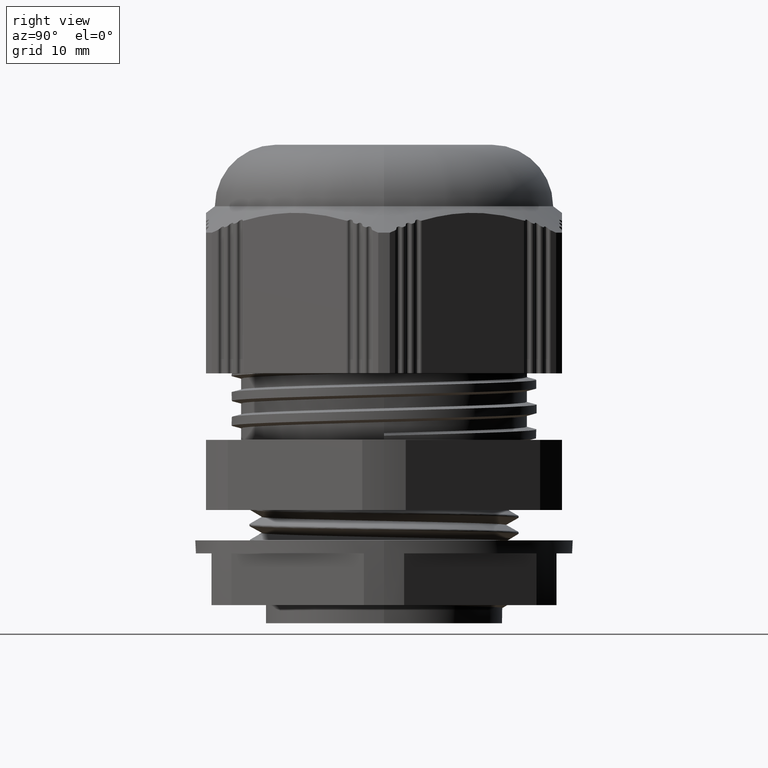
[diagram: clean part render]
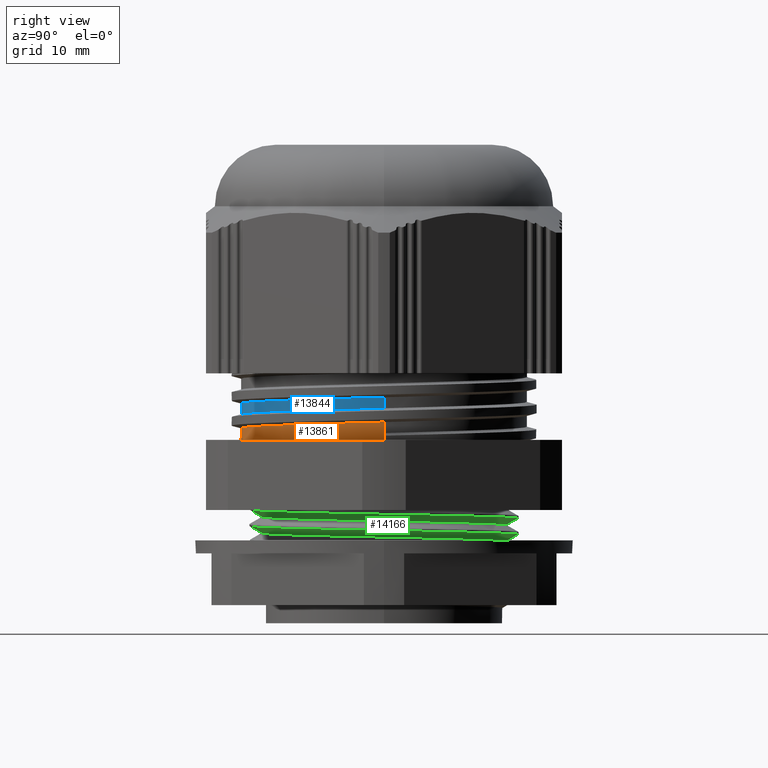
[diagram: same view with three faces highlighted in distinct colors, each labeled with its STEP entity id]
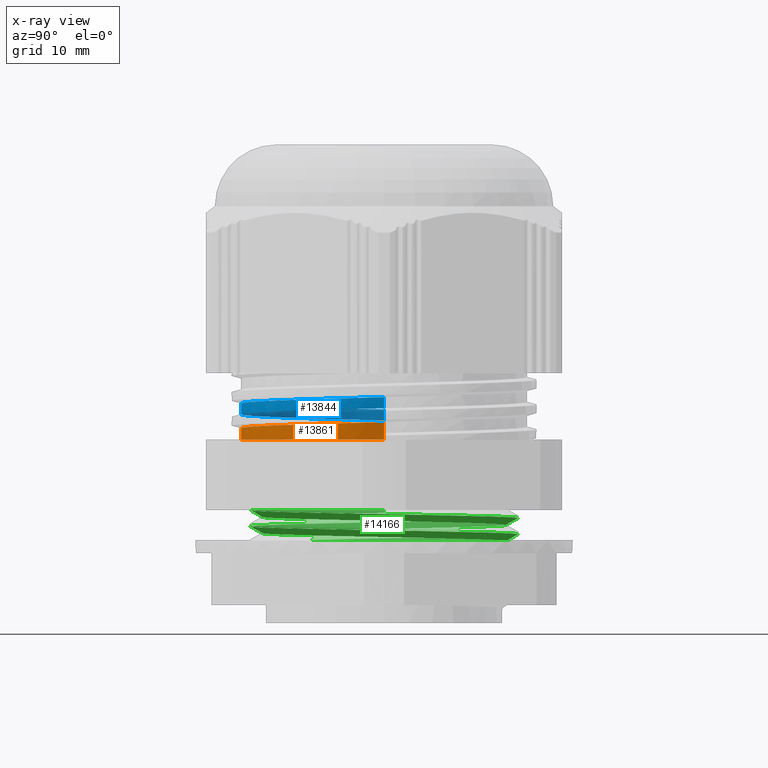
[diagram: x-ray of the same camera — body ghosted, the three highlighted faces saturated]
A machine part, right view with three faces highlighted in distinct colors.
The next image is the same camera in x-ray (body ghosted, the three faces saturated) — at least one of them is partly hidden behind the body in this view.
Their STEP definitions:

[orange] entity #13861 — the highlighted cylindrical surface (partial cylindrical patch) has radius 13.25 mm, axis along (-0, -0, -1).
#1371 = VERTEX_POINT ( 'NONE', #8330 ) ;
#1380 = VERTEX_POINT ( 'NONE', #8355 ) ;
#1400 = VERTEX_POINT ( 'NONE', #8377 ) ;
#1401 = VERTEX_POINT ( 'NONE', #8362 ) ;
#1424 = VERTEX_POINT ( 'NONE', #8402 ) ;
#1917 = LINE ( 'NONE', #1983, #12895 ) ;
#1983 = CARTESIAN_POINT ( 'NONE',  ( 13.25000000000000200, -2.412808294941499400E-015, 16.47990381056724400 ) ) ;
#1984 = DIRECTION ( 'NONE',  ( 0.0000000000000000000, 0.0000000000000000000, 1.000000000000000000 ) ) ;
#2043 = LINE ( 'NONE', #2046, #12894 ) ;
#2046 = CARTESIAN_POINT ( 'NONE',  ( 13.25000000000000200, 1.622657008870243300E-015, 37.00000000000000700 ) ) ;
#2047 = DIRECTION ( 'NONE',  ( -0.0000000000000000000, -0.0000000000000000000, -1.000000000000000000 ) ) ;
#2069 = DIRECTION ( 'NONE',  ( -1.000000000000000000, 0.0000000000000000000, 0.0000000000000000000 ) ) ;
#2083 = DIRECTION ( 'NONE',  ( -0.0000000000000000000, -0.0000000000000000000, -1.000000000000000000 ) ) ;
#2086 = CARTESIAN_POINT ( 'NONE',  ( 0.0000000000000000000, 0.0000000000000000000, 17.00000000000001800 ) ) ;
#2126 = CARTESIAN_POINT ( 'NONE',  ( -13.24999999999999800, 4.035465303811741300E-015, 17.50932667397281900 ) ) ;
#2149 = CARTESIAN_POINT ( 'NONE',  ( -13.25000000000000500, -4.305185975086005500, 17.62432667397281300 ) ) ;
#2154 = CARTESIAN_POINT ( 'NONE',  ( 8.188950350936103500, -11.27112321066452900, 18.31432667397282200 ) ) ;
#2156 = CARTESIAN_POINT ( 'NONE',  ( 4.094475175468048200, -12.60149884091078600, 18.19932667397282000 ) ) ;
#2158 = CARTESIAN_POINT ( 'NONE',  ( 13.25000000000000500, 3.612496407899203900E-013, 18.65932667397282800 ) ) ;
#2160 = CARTESIAN_POINT ( 'NONE',  ( -5.096220598043507100E-015, -13.93187447115703600, 18.08432667397282100 ) ) ;
#2174 = CARTESIAN_POINT ( 'NONE',  ( 13.25000000000028100, -4.305185975085628900, 18.54432667397282200 ) ) ;
#2177 = CARTESIAN_POINT ( 'NONE',  ( -10.71947517546805400, -7.788154592875266700, 17.73932667397282300 ) ) ;
#2187 = CARTESIAN_POINT ( 'NONE',  ( -8.188950350936110600, -11.27112321066452200, 17.85432667397281700 ) ) ;
#2189 = CARTESIAN_POINT ( 'NONE',  ( 10.71947517546805000, -7.788154592875275600, 18.42932667397282700 ) ) ;
#2190 = CARTESIAN_POINT ( 'NONE',  ( -4.094475175468058800, -12.60149884091078400, 17.96932667397281900 ) ) ;
#2261 = LINE ( 'NONE', #2265, #12955 ) ;
#2265 = CARTESIAN_POINT ( 'NONE',  ( -13.25000000000000200, 0.0000000000000000000, 37.00000000000000700 ) ) ;
#2271 = DIRECTION ( 'NONE',  ( -0.0000000000000000000, -0.0000000000000000000, -1.000000000000000000 ) ) ;
#2641 = EDGE_CURVE ( 'NONE', #1371, #1400, #1917, .T. ) ;
#2650 = EDGE_CURVE ( 'NONE', #1424, #1400, #2043, .T. ) ;
#2659 = EDGE_CURVE ( 'NONE', #1371, #1401, #12919, .T. ) ;
#2668 = EDGE_CURVE ( 'NONE', #1380, #1424, #4157, .T. ) ;
#2688 = EDGE_CURVE ( 'NONE', #1380, #1401, #2261, .T. ) ;
#3116 = AXIS2_PLACEMENT_3D ( 'NONE', #6259, #6225, #6239 ) ;
#3998 = ORIENTED_EDGE ( 'NONE', *, *, #2688, .T. ) ;
#4012 = ORIENTED_EDGE ( 'NONE', *, *, #2641, .T. ) ;
#4030 = ORIENTED_EDGE ( 'NONE', *, *, #2668, .F. ) ;
#4034 = ORIENTED_EDGE ( 'NONE', *, *, #2659, .F. ) ;
#4061 = ORIENTED_EDGE ( 'NONE', *, *, #2650, .F. ) ;
#4157 =( BOUNDED_CURVE ( )  B_SPLINE_CURVE ( 2, ( #2126, #2149, #2177, #2187, #2190, #2160, #2156, #2154, #2189, #2174, #2158 ),
 .UNSPECIFIED., .F., .T. ) 
 B_SPLINE_CURVE_WITH_KNOTS ( ( 3, 2, 2, 2, 2, 3 ),
 ( -0.1676083694263614300, -0.1592279325895034300, -0.1508474957526454400, -0.1424670589157874800, -0.1340866220789294900, -0.1257061852420715000 ),
 .UNSPECIFIED. ) 
 CURVE ( )  GEOMETRIC_REPRESENTATION_ITEM ( )  RATIONAL_B_SPLINE_CURVE ( ( 1.000000000000000000, 0.9510565162951535300, 1.000000000000000000, 0.9510565162951535300, 1.000000000000000000, 0.9510565162951535300, 1.000000000000000000, 0.9510565162951535300, 1.000000000000000000, 0.9510565162951484200, 1.000000000000005100 ) ) 
 REPRESENTATION_ITEM ( '' )  );
#6225 = DIRECTION ( 'NONE',  ( -0.0000000000000000000, -0.0000000000000000000, -1.000000000000000000 ) ) ;
#6230 = FACE_OUTER_BOUND ( 'NONE', #11141, .T. ) ;
#6239 = DIRECTION ( 'NONE',  ( -1.000000000000000000, 0.0000000000000000000, 0.0000000000000000000 ) ) ;
#6248 = CYLINDRICAL_SURFACE ( 'NONE', #3116, 13.25000000000000200 ) ;
#6259 = CARTESIAN_POINT ( 'NONE',  ( 0.0000000000000000000, 0.0000000000000000000, 37.00000000000000700 ) ) ;
#8330 = CARTESIAN_POINT ( 'NONE',  ( 13.25000000000000200, -2.494752727599954300E-015, 17.00000000000000000 ) ) ;
#8355 = CARTESIAN_POINT ( 'NONE',  ( -13.24999999999999800, 4.035465303811741300E-015, 17.50932667397281900 ) ) ;
#8362 = CARTESIAN_POINT ( 'NONE',  ( -13.25000000000000200, 0.0000000000000000000, 17.00000000000001800 ) ) ;
#8377 = CARTESIAN_POINT ( 'NONE',  ( 13.25000000000000200, -2.412808294941499400E-015, 17.64067332602712000 ) ) ;
#8402 = CARTESIAN_POINT ( 'NONE',  ( 13.25000000000000500, 3.612496407899203900E-013, 18.65932667397282800 ) ) ;
#11141 = EDGE_LOOP ( 'NONE', ( #4061, #4030, #3998, #4034, #4012 ) ) ;
#12894 = VECTOR ( 'NONE', #2047, 1000.000000000000000 ) ;
#12895 = VECTOR ( 'NONE', #1984, 1000.000000000000000 ) ;
#12919 = CIRCLE ( 'NONE', #12920, 13.25000000000000200 ) ;
#12920 = AXIS2_PLACEMENT_3D ( 'NONE', #2086, #2083, #2069 ) ;
#12955 = VECTOR ( 'NONE', #2271, 1000.000000000000000 ) ;
#13861 = ADVANCED_FACE ( 'NONE', ( #6230 ), #6248, .T. ) ;

[blue] entity #13844 — the highlighted cylindrical surface (partial cylindrical patch) has radius 13.25 mm, axis along (-0, -0, -1).
#1370 = VERTEX_POINT ( 'NONE', #8350 ) ;
#1391 = VERTEX_POINT ( 'NONE', #8385 ) ;
#1393 = VERTEX_POINT ( 'NONE', #8356 ) ;
#1417 = VERTEX_POINT ( 'NONE', #8393 ) ;
#1924 = CARTESIAN_POINT ( 'NONE',  ( -4.094475175468058800, -12.60149884091078800, 19.25067332602711500 ) ) ;
#1932 = CARTESIAN_POINT ( 'NONE',  ( 10.71947517546805200, -7.788154592875276400, 19.71067332602711300 ) ) ;
#1938 = CARTESIAN_POINT ( 'NONE',  ( 13.25000000000028400, -4.305185975085628900, 19.82567332602712500 ) ) ;
#1944 = CARTESIAN_POINT ( 'NONE',  ( -13.25000000000000200, 4.035465303811742900E-015, 18.79067332602711100 ) ) ;
#1950 = CARTESIAN_POINT ( 'NONE',  ( -10.71947517546805500, -7.788154592875267600, 19.02067332602711500 ) ) ;
#1969 = CARTESIAN_POINT ( 'NONE',  ( 4.094475175468048200, -12.60149884091078900, 19.48067332602712300 ) ) ;
#1971 = CARTESIAN_POINT ( 'NONE',  ( -8.188950350936110600, -11.27112321066452500, 19.13567332602711000 ) ) ;
#1973 = CARTESIAN_POINT ( 'NONE',  ( -13.25000000000000700, -4.305185975086005500, 18.90567332602711300 ) ) ;
#1985 = CARTESIAN_POINT ( 'NONE',  ( 8.188950350936103500, -11.27112321066453000, 19.59567332602711400 ) ) ;
#1990 = CARTESIAN_POINT ( 'NONE',  ( -5.096220598043507100E-015, -13.93187447115703600, 19.36567332602711400 ) ) ;
#1992 = CARTESIAN_POINT ( 'NONE',  ( 13.25000000000000200, 3.612496407899202900E-013, 19.94067332602712700 ) ) ;
#2021 = LINE ( 'NONE', #2032, #12908 ) ;
#2032 = CARTESIAN_POINT ( 'NONE',  ( 13.25000000000000200, 1.622657008870243300E-015, 37.00000000000000700 ) ) ;
#2038 = DIRECTION ( 'NONE',  ( -0.0000000000000000000, -0.0000000000000000000, -1.000000000000000000 ) ) ;
#2065 = CARTESIAN_POINT ( 'NONE',  ( -13.25000000000000200, 0.0000000000000000000, 37.00000000000000700 ) ) ;
#2081 = LINE ( 'NONE', #2065, #12921 ) ;
#2091 = DIRECTION ( 'NONE',  ( -0.0000000000000000000, -0.0000000000000000000, -1.000000000000000000 ) ) ;
#2644 = EDGE_CURVE ( 'NONE', #1391, #1417, #4156, .T. ) ;
#2647 = EDGE_CURVE ( 'NONE', #1393, #1391, #2021, .T. ) ;
#2660 = EDGE_CURVE ( 'NONE', #1370, #1417, #2081, .T. ) ;
#2715 = EDGE_CURVE ( 'NONE', #1370, #1393, #4160, .T. ) ;
#3107 = AXIS2_PLACEMENT_3D ( 'NONE', #6135, #6152, #6136 ) ;
#3996 = ORIENTED_EDGE ( 'NONE', *, *, #2644, .F. ) ;
#4001 = ORIENTED_EDGE ( 'NONE', *, *, #2647, .F. ) ;
#4016 = ORIENTED_EDGE ( 'NONE', *, *, #2715, .F. ) ;
#4033 = ORIENTED_EDGE ( 'NONE', *, *, #2660, .T. ) ;
#4156 =( BOUNDED_CURVE ( )  B_SPLINE_CURVE ( 2, ( #1992, #1938, #1932, #1985, #1969, #1990, #1924, #1971, #1950, #1973, #1944 ),
 .UNSPECIFIED., .F., .T. ) 
 B_SPLINE_CURVE_WITH_KNOTS ( ( 3, 2, 2, 2, 2, 3 ),
 ( -0.04190200052898114500, -0.03352160042318490900, -0.02514120031738868400, -0.01676080021159245800, -0.008380400105796222100, 0.0000000000000000000 ),
 .UNSPECIFIED. ) 
 CURVE ( )  GEOMETRIC_REPRESENTATION_ITEM ( )  RATIONAL_B_SPLINE_CURVE ( ( 1.000000000000005100, 0.9510565162951484200, 1.000000000000000000, 0.9510565162951535300, 1.000000000000000000, 0.9510565162951535300, 1.000000000000000000, 0.9510565162951535300, 1.000000000000000000, 0.9510565162951535300, 1.000000000000000000 ) ) 
 REPRESENTATION_ITEM ( '' )  );
#4160 =( BOUNDED_CURVE ( )  B_SPLINE_CURVE ( 2, ( #14579, #14583, #14658, #14621, #14664, #14610, #14639, #14642, #14646, #14614, #14616 ),
 .UNSPECIFIED., .F., .T. ) 
 B_SPLINE_CURVE_WITH_KNOTS ( ( 3, 2, 2, 2, 2, 3 ),
 ( -0.08380406227630851600, -0.07542364992684295900, -0.06704323757737741500, -0.05866282522791188600, -0.05028241287844632800, -0.04190200052898077800 ),
 .UNSPECIFIED. ) 
 CURVE ( )  GEOMETRIC_REPRESENTATION_ITEM ( )  RATIONAL_B_SPLINE_CURVE ( ( 1.000000000000004400, 0.9510565162951492000, 1.000000000000000000, 0.9510565162951535300, 1.000000000000000000, 0.9510565162951535300, 1.000000000000000000, 0.9510565162951535300, 1.000000000000000000, 0.9510565162951535300, 1.000000000000000000 ) ) 
 REPRESENTATION_ITEM ( '' )  );
#6129 = FACE_OUTER_BOUND ( 'NONE', #11189, .T. ) ;
#6133 = CYLINDRICAL_SURFACE ( 'NONE', #3107, 13.25000000000000200 ) ;
#6135 = CARTESIAN_POINT ( 'NONE',  ( 0.0000000000000000000, 0.0000000000000000000, 37.00000000000000700 ) ) ;
#6136 = DIRECTION ( 'NONE',  ( -1.000000000000000000, 0.0000000000000000000, 0.0000000000000000000 ) ) ;
#6152 = DIRECTION ( 'NONE',  ( -0.0000000000000000000, -0.0000000000000000000, -1.000000000000000000 ) ) ;
#8350 = CARTESIAN_POINT ( 'NONE',  ( -13.25000000000000200, 2.313244959818492500E-013, 19.80932667397282300 ) ) ;
#8356 = CARTESIAN_POINT ( 'NONE',  ( 13.25000000000000200, -2.412808294941499400E-015, 20.95932667397282500 ) ) ;
#8385 = CARTESIAN_POINT ( 'NONE',  ( 13.25000000000000200, 3.612496407899202900E-013, 19.94067332602712700 ) ) ;
#8393 = CARTESIAN_POINT ( 'NONE',  ( -13.25000000000000200, 4.035465303811742900E-015, 18.79067332602711100 ) ) ;
#11189 = EDGE_LOOP ( 'NONE', ( #4001, #4016, #4033, #3996 ) ) ;
#12908 = VECTOR ( 'NONE', #2038, 1000.000000000000000 ) ;
#12921 = VECTOR ( 'NONE', #2091, 1000.000000000000000 ) ;
#13844 = ADVANCED_FACE ( 'NONE', ( #6129 ), #6133, .T. ) ;
#14579 = CARTESIAN_POINT ( 'NONE',  ( -13.25000000000000200, 2.313244959818492500E-013, 19.80932667397282300 ) ) ;
#14583 = CARTESIAN_POINT ( 'NONE',  ( -13.25000000000024200, -4.305185975085679600, 19.92432667397279600 ) ) ;
#14610 = CARTESIAN_POINT ( 'NONE',  ( -5.096220598043507100E-015, -13.93187447115703700, 20.38432667397281900 ) ) ;
#14614 = CARTESIAN_POINT ( 'NONE',  ( 13.25000000000000200, -4.305185975086015300, 20.84432667397280900 ) ) ;
#14616 = CARTESIAN_POINT ( 'NONE',  ( 13.25000000000000200, -2.412808294941499400E-015, 20.95932667397282500 ) ) ;
#14621 = CARTESIAN_POINT ( 'NONE',  ( -8.188950350936110600, -11.27112321066452900, 20.15432667397282200 ) ) ;
#14639 = CARTESIAN_POINT ( 'NONE',  ( 4.094475175468048200, -12.60149884091078800, 20.49932667397282400 ) ) ;
#14642 = CARTESIAN_POINT ( 'NONE',  ( 8.188950350936103500, -11.27112321066453200, 20.61432667397281900 ) ) ;
#14646 = CARTESIAN_POINT ( 'NONE',  ( 10.71947517546805400, -7.788154592875276400, 20.72932667397281700 ) ) ;
#14658 = CARTESIAN_POINT ( 'NONE',  ( -10.71947517546805700, -7.788154592875267600, 20.03932667397282000 ) ) ;
#14664 = CARTESIAN_POINT ( 'NONE',  ( -4.094475175468058800, -12.60149884091078600, 20.26932667397282000 ) ) ;

[green] entity #14166 — the highlighted face is a freeform B-spline surface patch.
#1028 = FACE_OUTER_BOUND ( 'NONE', #11183, .T. ) ;
#1057 = CARTESIAN_POINT ( 'NONE',  ( -5.146423329586087700, -12.42456500000001900, 4.580092194645235500 ) ) ;
#1058 = CARTESIAN_POINT ( 'NONE',  ( 5.146423329586084200, 12.42456500000001900, 3.830092194645237300 ) ) ;
#1059 = CARTESIAN_POINT ( 'NONE',  ( 5.146423329586086800, -12.42456500000001900, 4.392592194645236400 ) ) ;
#1060 = CARTESIAN_POINT ( 'NONE',  ( 12.42456500000002300, -5.146423329586082400, 4.205092194645236400 ) ) ;
#1061 = CARTESIAN_POINT ( 'NONE',  ( 12.42456500000002300, 5.146423329586082400, 7.017592194645230200 ) ) ;
#1062 = CARTESIAN_POINT ( 'NONE',  ( 5.146423329586084200, 12.42456500000001900, 5.330092194645233800 ) ) ;
#1063 = CARTESIAN_POINT ( 'NONE',  ( -5.146423329586082400, 12.42456500000002300, 2.142592194645240900 ) ) ;
#1064 = CARTESIAN_POINT ( 'NONE',  ( 8.785494164793052000, 8.785494164793050200, 5.423842194645233800 ) ) ;
#1065 = CARTESIAN_POINT ( 'NONE',  ( 1.501712434213803300E-015, 12.42456500000002100, 6.736342194645232000 ) ) ;
#1066 = CARTESIAN_POINT ( 'NONE',  ( 8.785494164793052000, 8.785494164793050200, 3.923842194645237800 ) ) ;
#1067 = CARTESIAN_POINT ( 'NONE',  ( 5.146423329586086800, -12.42456500000001900, 2.892592194645240400 ) ) ;
#1068 = CARTESIAN_POINT ( 'NONE',  ( 8.785494164793052000, -8.785494164793052000, 7.298842194645230200 ) ) ;
#1069 = CARTESIAN_POINT ( 'NONE',  ( -12.42456500000001900, 5.146423329586085100, 1.955092194645241100 ) ) ;
#1070 = CARTESIAN_POINT ( 'NONE',  ( -8.785494164793052000, -8.785494164793052000, 4.673842194645234600 ) ) ;
#1071 = CARTESIAN_POINT ( 'NONE',  ( -12.42456500000001900, -5.146423329586087700, 4.767592194645235500 ) ) ;
#1072 = CARTESIAN_POINT ( 'NONE',  ( -8.785494164793050200, 8.785494164793052000, 5.048842194645235500 ) ) ;
#1073 = CARTESIAN_POINT ( 'NONE',  ( 12.42456500000002300, -5.146423329586082400, 2.705092194645239500 ) ) ;
#1074 = CARTESIAN_POINT ( 'NONE',  ( -5.146423329586087700, -12.42456500000001900, 3.080092194645238200 ) ) ;
#1076 = CARTESIAN_POINT ( 'NONE',  ( -12.42456500000001900, 5.146423329586085100, 4.955092194645234600 ) ) ;
#1077 = CARTESIAN_POINT ( 'NONE',  ( 12.42456500000002300, 5.146423329586082400, 5.517592194645233800 ) ) ;
#1078 = CARTESIAN_POINT ( 'NONE',  ( -12.42456500000001900, 5.146423329586085100, 6.455092194645232000 ) ) ;
#1079 = CARTESIAN_POINT ( 'NONE',  ( -8.785494164793052000, -8.785494164793052000, 3.173842194645238600 ) ) ;
#1080 = CARTESIAN_POINT ( 'NONE',  ( 1.501712434213803300E-015, 12.42456500000002100, 5.236342194645233800 ) ) ;
#1081 = CARTESIAN_POINT ( 'NONE',  ( -12.42456500000002100, 2.262497622116216400E-015, 1.861342194645241500 ) ) ;
#1082 = CARTESIAN_POINT ( 'NONE',  ( 12.42456500000002100, -7.409272463113904300E-016, 2.611342194645240000 ) ) ;
#1083 = CARTESIAN_POINT ( 'NONE',  ( 1.985794159102245700E-017, -12.42456500000002100, 4.486342194645236400 ) ) ;
#1084 = CARTESIAN_POINT ( 'NONE',  ( 12.42456500000002300, 5.146423329586082400, 2.517592194645239500 ) ) ;
#1085 = CARTESIAN_POINT ( 'NONE',  ( -8.785494164793050200, 8.785494164793052000, 6.548842194645231100 ) ) ;
#1086 = CARTESIAN_POINT ( 'NONE',  ( 8.785494164793052000, 8.785494164793050200, 6.923842194645230200 ) ) ;
#1087 = CARTESIAN_POINT ( 'NONE',  ( -5.146423329586082400, 12.42456500000002300, 6.642592194645232000 ) ) ;
#1088 = CARTESIAN_POINT ( 'NONE',  ( -8.785494164793052000, -8.785494164793052000, 6.173842194645232900 ) ) ;
#1089 = CARTESIAN_POINT ( 'NONE',  ( 5.146423329586086800, -12.42456500000001900, 5.892592194645233800 ) ) ;
#1090 = CARTESIAN_POINT ( 'NONE',  ( -12.42456500000001900, 5.146423329586085100, 3.455092194645238600 ) ) ;
#1091 = CARTESIAN_POINT ( 'NONE',  ( -12.42456500000002100, 2.262497622116216400E-015, 6.361342194645231100 ) ) ;
#1092 = CARTESIAN_POINT ( 'NONE',  ( 12.42456500000002100, -7.409272463113904300E-016, 7.111342194645230200 ) ) ;
#1093 = CARTESIAN_POINT ( 'NONE',  ( 1.501712434213803300E-015, 12.42456500000002100, 3.736342194645238600 ) ) ;
#1094 = CARTESIAN_POINT ( 'NONE',  ( 8.785494164793052000, 8.785494164793050200, 2.423842194645240400 ) ) ;
#1095 = CARTESIAN_POINT ( 'NONE',  ( 12.42456500000002100, -7.409272463113904300E-016, 4.111342194645236400 ) ) ;
#1096 = CARTESIAN_POINT ( 'NONE',  ( 1.985794159102245700E-017, -12.42456500000002100, 2.986342194645239100 ) ) ;
#1097 = CARTESIAN_POINT ( 'NONE',  ( -12.42456500000002100, 2.262497622116216400E-015, 4.861342194645235500 ) ) ;
#1098 = CARTESIAN_POINT ( 'NONE',  ( 12.42456500000002100, -7.409272463113904300E-016, 5.611342194645233800 ) ) ;
#1099 = CARTESIAN_POINT ( 'NONE',  ( 12.42456500000002300, -5.146423329586082400, 7.205092194645230200 ) ) ;
#1100 = CARTESIAN_POINT ( 'NONE',  ( 8.785494164793052000, -8.785494164793052000, 2.798842194645240000 ) ) ;
#1101 = CARTESIAN_POINT ( 'NONE',  ( -12.42456500000002100, 2.262497622116216400E-015, 3.361342194645238200 ) ) ;
#1102 = CARTESIAN_POINT ( 'NONE',  ( 1.985794159102245700E-017, -12.42456500000002100, 7.486342194645228400 ) ) ;
#1103 = CARTESIAN_POINT ( 'NONE',  ( -8.785494164793050200, 8.785494164793052000, 3.548842194645237800 ) ) ;
#1104 = CARTESIAN_POINT ( 'NONE',  ( -5.146423329586082400, 12.42456500000002300, 5.142592194645233800 ) ) ;
#1105 = CARTESIAN_POINT ( 'NONE',  ( -8.785494164793050200, 8.785494164793052000, 2.048842194645241300 ) ) ;
#1106 = CARTESIAN_POINT ( 'NONE',  ( -5.146423329586082400, 12.42456500000002300, 3.642592194645239100 ) ) ;
#1107 = CARTESIAN_POINT ( 'NONE',  ( 12.42456500000002300, 5.146423329586082400, 4.017592194645235500 ) ) ;
#1108 = CARTESIAN_POINT ( 'NONE',  ( 1.985794159102245700E-017, -12.42456500000002100, 5.986342194645232900 ) ) ;
#1109 = CARTESIAN_POINT ( 'NONE',  ( -12.42456500000001900, -5.146423329586087700, 3.267592194645238600 ) ) ;
#1110 = CARTESIAN_POINT ( 'NONE',  ( -5.146423329586087700, -12.42456500000001900, 6.080092194645233800 ) ) ;
#1111 = CARTESIAN_POINT ( 'NONE',  ( 5.146423329586084200, 12.42456500000001900, 6.830092194645231100 ) ) ;
#1112 = CARTESIAN_POINT ( 'NONE',  ( 8.785494164793052000, -8.785494164793052000, 4.298842194645236400 ) ) ;
#1113 = CARTESIAN_POINT ( 'NONE',  ( 8.785494164793052000, -8.785494164793052000, 5.798842194645233800 ) ) ;
#1114 = CARTESIAN_POINT ( 'NONE',  ( 5.146423329586084200, 12.42456500000001900, 2.330092194645240900 ) ) ;
#1115 = CARTESIAN_POINT ( 'NONE',  ( -12.42456500000001900, -5.146423329586087700, 6.267592194645233800 ) ) ;
#1116 = CARTESIAN_POINT ( 'NONE',  ( 1.501712434213803300E-015, 12.42456500000002100, 2.236342194645240400 ) ) ;
#1117 = CARTESIAN_POINT ( 'NONE',  ( 12.42456500000002300, -5.146423329586082400, 5.705092194645236400 ) ) ;
#1118 = CARTESIAN_POINT ( 'NONE',  ( 5.146423329586086800, -12.42456500000001900, 7.392592194645230200 ) ) ;
#1119 = CARTESIAN_POINT ( 'NONE',  ( 12.42456500000002300, 5.146423329586082400, 10.01759219464522300 ) ) ;
#1120 = CARTESIAN_POINT ( 'NONE',  ( 4.702082728408200300, 11.35183189432336100, 3.210749447314198000 ) ) ;
#1121 = CARTESIAN_POINT ( 'NONE',  ( 8.026957311365785900, 8.026957311365784200, 3.304499447314197500 ) ) ;
#1122 = CARTESIAN_POINT ( 'NONE',  ( 11.35183189432336100, 4.702082728408199400, 3.398249447314198000 ) ) ;
#1123 = CARTESIAN_POINT ( 'NONE',  ( 8.785494164793052000, -8.785494164793052000, 10.29884219464522300 ) ) ;
#1124 = CARTESIAN_POINT ( 'NONE',  ( 5.146423329586084200, 12.42456500000001900, 8.330092194645224900 ) ) ;
#1125 = CARTESIAN_POINT ( 'NONE',  ( 8.785494164793052000, -8.785494164793052000, 8.798842194645226700 ) ) ;
#1126 = CARTESIAN_POINT ( 'NONE',  ( -12.42456500000001900, 5.146423329586085100, 9.455092194645224900 ) ) ;
#1127 = CARTESIAN_POINT ( 'NONE',  ( 11.35183189432336100, -6.769558166463622000E-016, 3.491999447314198000 ) ) ;
#1128 = CARTESIAN_POINT ( 'NONE',  ( 1.985794159102245700E-017, -12.42456500000002100, 10.48634219464522300 ) ) ;
#1129 = CARTESIAN_POINT ( 'NONE',  ( -12.42456500000002100, 2.262497622116216400E-015, 7.861342194645229300 ) ) ;
#1130 = CARTESIAN_POINT ( 'NONE',  ( 11.35183189432336300, -4.702082728408198500, 3.585749447314198400 ) ) ;
#1131 = CARTESIAN_POINT ( 'NONE',  ( 8.026957311365784200, -8.026957311365785900, 3.679499447314196600 ) ) ;
#1132 = CARTESIAN_POINT ( 'NONE',  ( 11.35183189432336100, 4.702082728408199400, 1.898249447314200600 ) ) ;
#1133 = CARTESIAN_POINT ( 'NONE',  ( 4.702082728408203800, -11.35183189432335900, 3.773249447314198000 ) ) ;
#1134 = CARTESIAN_POINT ( 'NONE',  ( -12.42456500000001900, 5.146423329586085100, 7.955092194645228400 ) ) ;
#1135 = CARTESIAN_POINT ( 'NONE',  ( 8.785494164793052000, 8.785494164793050200, 9.923842194645223100 ) ) ;
#1136 = CARTESIAN_POINT ( 'NONE',  ( -12.42456500000001900, -5.146423329586087700, 7.767592194645231100 ) ) ;
#1137 = CARTESIAN_POINT ( 'NONE',  ( -8.785494164793052000, -8.785494164793052000, 9.173842194645224900 ) ) ;
#1138 = CARTESIAN_POINT ( 'NONE',  ( -8.785494164793052000, -8.785494164793052000, 7.673842194645230200 ) ) ;
#1139 = CARTESIAN_POINT ( 'NONE',  ( -12.42456500000001900, -5.146423329586087700, 9.267592194645224900 ) ) ;
#1140 = CARTESIAN_POINT ( 'NONE',  ( 1.501712434213803300E-015, 12.42456500000002100, 9.736342194645223100 ) ) ;
#1141 = CARTESIAN_POINT ( 'NONE',  ( -4.702082728408198500, 11.35183189432336100, 1.523249447314201300 ) ) ;
#1142 = CARTESIAN_POINT ( 'NONE',  ( -11.35183189432336100, 4.702082728408202100, 1.335749447314202600 ) ) ;
#1143 = CARTESIAN_POINT ( 'NONE',  ( 1.372055046338459500E-015, 11.35183189432336100, 1.616999447314201100 ) ) ;
#1144 = CARTESIAN_POINT ( 'NONE',  ( -5.146423329586087700, -12.42456500000001900, 10.58009219464522300 ) ) ;
#1145 = CARTESIAN_POINT ( 'NONE',  ( 8.026957311365785900, 8.026957311365784200, 1.804499447314200600 ) ) ;
#1146 = CARTESIAN_POINT ( 'NONE',  ( 12.42456500000002100, -7.409272463113904300E-016, 10.11134219464522800 ) ) ;
#1147 = CARTESIAN_POINT ( 'NONE',  ( -11.35183189432336100, 2.067154276030556100E-015, 1.241999447314202400 ) ) ;
#1148 = CARTESIAN_POINT ( 'NONE',  ( 11.35183189432336100, -6.769558166463622000E-016, 1.991999447314200400 ) ) ;
#1149 = CARTESIAN_POINT ( 'NONE',  ( 11.35183189432336300, -4.702082728408198500, 2.085749447314200200 ) ) ;
#1150 = CARTESIAN_POINT ( 'NONE',  ( 4.702082728408203800, -11.35183189432335900, 2.273249447314200200 ) ) ;
#1151 = CARTESIAN_POINT ( 'NONE',  ( 1.814341304573468200E-017, -11.35183189432336100, 2.366999447314199300 ) ) ;
#1152 = CARTESIAN_POINT ( 'NONE',  ( 12.42456500000002300, -5.146423329586082400, 8.705092194645226700 ) ) ;
#1153 = CARTESIAN_POINT ( 'NONE',  ( 5.146423329586086800, -12.42456500000001900, 10.39259219464522500 ) ) ;
#1154 = CARTESIAN_POINT ( 'NONE',  ( -8.026957311365784200, 8.026957311365785900, 1.429499447314201300 ) ) ;
#1155 = CARTESIAN_POINT ( 'NONE',  ( -4.702082728408203800, -11.35183189432335900, 2.460749447314199300 ) ) ;
#1156 = CARTESIAN_POINT ( 'NONE',  ( 1.501712434213803300E-015, 12.42456500000002100, 8.236342194645232000 ) ) ;
#1157 = CARTESIAN_POINT ( 'NONE',  ( 12.42456500000002300, 5.146423329586082400, 8.517592194645232000 ) ) ;
#1158 = CARTESIAN_POINT ( 'NONE',  ( -11.35183189432335900, -4.702082728408205600, 2.648249447314198900 ) ) ;
#1159 = CARTESIAN_POINT ( 'NONE',  ( -5.146423329586087700, -12.42456500000001900, 9.080092194645228400 ) ) ;
#1160 = CARTESIAN_POINT ( 'NONE',  ( -11.35183189432336100, 2.067154276030556100E-015, 2.741999447314198900 ) ) ;
#1161 = CARTESIAN_POINT ( 'NONE',  ( -4.702082728408198500, 11.35183189432336100, 3.023249447314198000 ) ) ;
#1162 = CARTESIAN_POINT ( 'NONE',  ( 1.372055046338459500E-015, 11.35183189432336100, 3.116999447314198000 ) ) ;
#1163 = CARTESIAN_POINT ( 'NONE',  ( 8.785494164793052000, 8.785494164793050200, 8.423842194645228400 ) ) ;
#1164 = CARTESIAN_POINT ( 'NONE',  ( -5.146423329586082400, 12.42456500000002300, 8.142592194645226700 ) ) ;
#1165 = CARTESIAN_POINT ( 'NONE',  ( 12.42456500000002300, -5.146423329586082400, 10.20509219464522100 ) ) ;
#1166 = CARTESIAN_POINT ( 'NONE',  ( 5.146423329586086800, -12.42456500000001900, 8.892592194645224900 ) ) ;
#1167 = CARTESIAN_POINT ( 'NONE',  ( -8.785494164793052000, -8.785494164793052000, 10.67384219464522300 ) ) ;
#1168 = CARTESIAN_POINT ( 'NONE',  ( -8.785494164793050200, 8.785494164793052000, 8.048842194645226700 ) ) ;
#1169 = CARTESIAN_POINT ( 'NONE',  ( -12.42456500000002100, 2.262497622116216400E-015, 9.361342194645224900 ) ) ;
#1170 = CARTESIAN_POINT ( 'NONE',  ( -8.785494164793050200, 8.785494164793052000, 9.548842194645224900 ) ) ;
#1171 = CARTESIAN_POINT ( 'NONE',  ( 5.146423329586084200, 12.42456500000001900, 9.830092194645223100 ) ) ;
#1172 = CARTESIAN_POINT ( 'NONE',  ( -12.42456500000001900, -5.146423329586087700, 10.76759219464522300 ) ) ;
#1173 = CARTESIAN_POINT ( 'NONE',  ( -12.42456500000002100, 2.262497622116216400E-015, 10.86134219464522100 ) ) ;
#1174 = CARTESIAN_POINT ( 'NONE',  ( 12.42456500000002100, -7.409272463113904300E-016, 8.611342194645226700 ) ) ;
#1175 = CARTESIAN_POINT ( 'NONE',  ( 4.702082728408200300, 11.35183189432336100, 1.710749447314200900 ) ) ;
#1176 = CARTESIAN_POINT ( 'NONE',  ( 8.026957311365784200, -8.026957311365785900, 2.179499447314200200 ) ) ;
#1177 = CARTESIAN_POINT ( 'NONE',  ( -8.026957311365784200, -8.026957311365784200, 2.554499447314200200 ) ) ;
#1178 = CARTESIAN_POINT ( 'NONE',  ( -5.146423329586087700, -12.42456500000001900, 7.580092194645229300 ) ) ;
#1179 = CARTESIAN_POINT ( 'NONE',  ( -5.146423329586082400, 12.42456500000002300, 9.642592194645224900 ) ) ;
#1180 = CARTESIAN_POINT ( 'NONE',  ( -11.35183189432336100, 4.702082728408202100, 2.835749447314198000 ) ) ;
#1181 = CARTESIAN_POINT ( 'NONE',  ( -8.026957311365784200, 8.026957311365785900, 2.929499447314198000 ) ) ;
#1182 = CARTESIAN_POINT ( 'NONE',  ( 1.985794159102245700E-017, -12.42456500000002100, 8.986342194645226700 ) ) ;
#1183 = CARTESIAN_POINT ( 'NONE',  ( 8.026957311365785900, 8.026957311365784200, 4.804499447314194400 ) ) ;
#1184 = CARTESIAN_POINT ( 'NONE',  ( -11.35183189432336100, 2.067154276030556100E-015, 8.741999447314185500 ) ) ;
#1185 = CARTESIAN_POINT ( 'NONE',  ( 8.026957311365785900, 8.026957311365784200, 9.304499447314189100 ) ) ;
#1186 = CARTESIAN_POINT ( 'NONE',  ( 8.026957311365784200, -8.026957311365785900, 9.679499447314183800 ) ) ;
#1187 = CARTESIAN_POINT ( 'NONE',  ( 1.814341304573468200E-017, -11.35183189432336100, 5.366999447314193500 ) ) ;
#1188 = CARTESIAN_POINT ( 'NONE',  ( -8.026957311365784200, 8.026957311365785900, 5.929499447314191800 ) ) ;
#1189 = CARTESIAN_POINT ( 'NONE',  ( 1.372055046338459500E-015, 11.35183189432336100, 6.116999447314191800 ) ) ;
#1190 = CARTESIAN_POINT ( 'NONE',  ( -4.702082728408203800, -11.35183189432335900, 3.960749447314195300 ) ) ;
#1191 = CARTESIAN_POINT ( 'NONE',  ( -11.35183189432335900, -4.702082728408205600, 7.148249447314190900 ) ) ;
#1192 = CARTESIAN_POINT ( 'NONE',  ( -11.35183189432336100, 4.702082728408202100, 5.835749447314191800 ) ) ;
#1193 = CARTESIAN_POINT ( 'NONE',  ( -11.35183189432335900, -4.702082728408205600, 4.148249447314196200 ) ) ;
#1194 = CARTESIAN_POINT ( 'NONE',  ( 8.026957311365784200, -8.026957311365785900, 6.679499447314190000 ) ) ;
#1195 = CARTESIAN_POINT ( 'NONE',  ( -11.35183189432336100, 4.702082728408202100, 7.335749447314189100 ) ) ;
#1196 = CARTESIAN_POINT ( 'NONE',  ( -11.35183189432336100, 4.702082728408202100, 4.335749447314196200 ) ) ;
#1197 = CARTESIAN_POINT ( 'NONE',  ( 11.35183189432336300, -4.702082728408198500, 6.585749447314190000 ) ) ;
#1198 = CARTESIAN_POINT ( 'NONE',  ( 1.814341304573468200E-017, -11.35183189432336100, 8.366999447314185500 ) ) ;
#1199 = CARTESIAN_POINT ( 'NONE',  ( -11.35183189432336100, 4.702082728408202100, 8.835749447314185500 ) ) ;
#1200 = CARTESIAN_POINT ( 'NONE',  ( -4.702082728408198500, 11.35183189432336100, 7.523249447314189100 ) ) ;
#1201 = CARTESIAN_POINT ( 'NONE',  ( -8.026957311365784200, -8.026957311365784200, 8.554499447314185500 ) ) ;
#1202 = CARTESIAN_POINT ( 'NONE',  ( 1.372055046338459500E-015, 11.35183189432336100, 9.116999447314183800 ) ) ;
#1203 = CARTESIAN_POINT ( 'NONE',  ( 8.026957311365784200, -8.026957311365785900, 5.179499447314193500 ) ) ;
#1204 = CARTESIAN_POINT ( 'NONE',  ( 4.702082728408200300, 11.35183189432336100, 6.210749447314190900 ) ) ;
#1205 = CARTESIAN_POINT ( 'NONE',  ( 4.702082728408200300, 11.35183189432336100, 9.210749447314185500 ) ) ;
#1206 = CARTESIAN_POINT ( 'NONE',  ( -8.026957311365784200, 8.026957311365785900, 4.429499447314195300 ) ) ;
#1207 = CARTESIAN_POINT ( 'NONE',  ( -8.026957311365784200, -8.026957311365784200, 7.054499447314191800 ) ) ;
#1208 = CARTESIAN_POINT ( 'NONE',  ( 1.372055046338459500E-015, 11.35183189432336100, 7.616999447314188200 ) ) ;
#1209 = CARTESIAN_POINT ( 'NONE',  ( 11.35183189432336100, -6.769558166463622000E-016, 4.991999447314193500 ) ) ;
#1210 = CARTESIAN_POINT ( 'NONE',  ( -11.35183189432335900, -4.702082728408205600, 5.648249447314192700 ) ) ;
#1211 = CARTESIAN_POINT ( 'NONE',  ( -4.702082728408203800, -11.35183189432335900, 6.960749447314189100 ) ) ;
#1212 = CARTESIAN_POINT ( 'NONE',  ( 8.026957311365784200, -8.026957311365785900, 8.179499447314187300 ) ) ;
#1213 = CARTESIAN_POINT ( 'NONE',  ( -11.35183189432335900, -4.702082728408205600, 8.648249447314189100 ) ) ;
#1214 = CARTESIAN_POINT ( 'NONE',  ( -4.702082728408198500, 11.35183189432336100, 9.023249447314187300 ) ) ;
#1215 = CARTESIAN_POINT ( 'NONE',  ( 11.35183189432336100, 4.702082728408199400, 9.398249447314187300 ) ) ;
#1216 = CARTESIAN_POINT ( 'NONE',  ( 11.35183189432336100, -6.769558166463622000E-016, 9.491999447314185500 ) ) ;
#1217 = CARTESIAN_POINT ( 'NONE',  ( 11.35183189432336300, -4.702082728408198500, 9.585749447314187300 ) ) ;
#1218 = CARTESIAN_POINT ( 'NONE',  ( 4.702082728408203800, -11.35183189432335900, 8.273249447314185500 ) ) ;
#1219 = CARTESIAN_POINT ( 'NONE',  ( 11.35183189432336100, 4.702082728408199400, 4.898249447314194400 ) ) ;
#1220 = CARTESIAN_POINT ( 'NONE',  ( 11.35183189432336100, -6.769558166463622000E-016, 7.991999447314187300 ) ) ;
#1221 = CARTESIAN_POINT ( 'NONE',  ( 1.372055046338459500E-015, 11.35183189432336100, 4.616999447314194400 ) ) ;
#1222 = CARTESIAN_POINT ( 'NONE',  ( 11.35183189432336300, -4.702082728408198500, 5.085749447314195300 ) ) ;
#1223 = CARTESIAN_POINT ( 'NONE',  ( -4.702082728408198500, 11.35183189432336100, 4.523249447314194400 ) ) ;
#1224 = CARTESIAN_POINT ( 'NONE',  ( -4.702082728408203800, -11.35183189432335900, 5.460749447314192700 ) ) ;
#1225 = CARTESIAN_POINT ( 'NONE',  ( 4.702082728408203800, -11.35183189432335900, 6.773249447314190000 ) ) ;
#1226 = CARTESIAN_POINT ( 'NONE',  ( 4.702082728408203800, -11.35183189432335900, 9.773249447314187300 ) ) ;
#1227 = CARTESIAN_POINT ( 'NONE',  ( -8.026957311365784200, -8.026957311365784200, 4.054499447314195300 ) ) ;
#1228 = CARTESIAN_POINT ( 'NONE',  ( 4.702082728408203800, -11.35183189432335900, 5.273249447314192700 ) ) ;
#1229 = CARTESIAN_POINT ( 'NONE',  ( 8.026957311365785900, 8.026957311365784200, 6.304499447314190900 ) ) ;
#1230 = CARTESIAN_POINT ( 'NONE',  ( 4.702082728408200300, 11.35183189432336100, 7.710749447314190000 ) ) ;
#1231 = CARTESIAN_POINT ( 'NONE',  ( -4.702082728408198500, 11.35183189432336100, 6.023249447314191800 ) ) ;
#1232 = CARTESIAN_POINT ( 'NONE',  ( 8.026957311365785900, 8.026957311365784200, 7.804499447314187300 ) ) ;
#1233 = CARTESIAN_POINT ( 'NONE',  ( -8.026957311365784200, 8.026957311365785900, 8.929499447314185500 ) ) ;
#1234 = CARTESIAN_POINT ( 'NONE',  ( 11.35183189432336100, 4.702082728408199400, 6.398249447314190000 ) ) ;
#1235 = CARTESIAN_POINT ( 'NONE',  ( -8.026957311365784200, -8.026957311365784200, 5.554499447314192700 ) ) ;
#1236 = CARTESIAN_POINT ( 'NONE',  ( -11.35183189432336100, 2.067154276030556100E-015, 5.741999447314191800 ) ) ;
#1237 = CARTESIAN_POINT ( 'NONE',  ( 11.35183189432336100, -6.769558166463622000E-016, 6.491999447314190900 ) ) ;
#1238 = CARTESIAN_POINT ( 'NONE',  ( 1.814341304573468200E-017, -11.35183189432336100, 6.866999447314189100 ) ) ;
#1239 = CARTESIAN_POINT ( 'NONE',  ( -8.026957311365784200, 8.026957311365785900, 7.429499447314188200 ) ) ;
#1240 = CARTESIAN_POINT ( 'NONE',  ( 1.814341304573468200E-017, -11.35183189432336100, 3.866999447314196200 ) ) ;
#1241 = CARTESIAN_POINT ( 'NONE',  ( 4.702082728408200300, 11.35183189432336100, 4.710749447314195300 ) ) ;
#1242 = CARTESIAN_POINT ( 'NONE',  ( -11.35183189432336100, 2.067154276030556100E-015, 7.241999447314189100 ) ) ;
#1243 = CARTESIAN_POINT ( 'NONE',  ( 11.35183189432336300, -4.702082728408198500, 8.085749447314189100 ) ) ;
#1244 = CARTESIAN_POINT ( 'NONE',  ( -11.35183189432336100, 2.067154276030556100E-015, 4.241999447314196200 ) ) ;
#1245 = CARTESIAN_POINT ( 'NONE',  ( -4.702082728408203800, -11.35183189432335900, 8.460749447314185500 ) ) ;
#1246 = CARTESIAN_POINT ( 'NONE',  ( 11.35183189432336100, 4.702082728408199400, 7.898249447314189100 ) ) ;
#1248 = CARTESIAN_POINT ( 'NONE',  ( 1.814341304573468200E-017, -11.35183189432336100, 9.866999447314183800 ) ) ;
#1273 = CARTESIAN_POINT ( 'NONE',  ( -11.35183189432335900, -4.702082728408205600, 10.14824944731418200 ) ) ;
#1278 = CARTESIAN_POINT ( 'NONE',  ( -4.702082728408203800, -11.35183189432335900, 9.960749447314182000 ) ) ;
#1279 = CARTESIAN_POINT ( 'NONE',  ( -11.35183189432336100, 2.067154276030556100E-015, 10.24199944731418200 ) ) ;
#1282 = CARTESIAN_POINT ( 'NONE',  ( -8.026957311365784200, -8.026957311365784200, 10.05449944731418400 ) ) ;
#1556 = VERTEX_POINT ( 'NONE', #2596 ) ;
#1605 = CARTESIAN_POINT ( 'NONE',  ( 3.131096955338490900, 10.91147649098173900, 7.683063884747839200 ) ) ;
#1621 = CARTESIAN_POINT ( 'NONE',  ( -9.133303799511518100, -8.423335274406730000, 7.683063884748326800 ) ) ;
#1629 = CARTESIAN_POINT ( 'NONE',  ( -11.35183189432339100, 9.849210736859377900E-013, 10.24199944731418600 ) ) ;
#1696 = CARTESIAN_POINT ( 'NONE',  ( -11.79870195995605000, 4.964879013406881500E-013, 10.49999999999999800 ) ) ;
#1998 = VERTEX_POINT ( 'NONE', #1629 ) ;
#2026 = VERTEX_POINT ( 'NONE', #1605 ) ;
#2030 = VERTEX_POINT ( 'NONE', #1621 ) ;
#2106 = VERTEX_POINT ( 'NONE', #1696 ) ;
#2596 = CARTESIAN_POINT ( 'NONE',  ( -0.7405968280182172500, -12.40247280898268700, 10.49999999999999800 ) ) ;
#3627 = ORIENTED_EDGE ( 'NONE', *, *, #13048, .T. ) ;
#3639 = ORIENTED_EDGE ( 'NONE', *, *, #13089, .T. ) ;
#3659 = ORIENTED_EDGE ( 'NONE', *, *, #13082, .T. ) ;
#3672 = ORIENTED_EDGE ( 'NONE', *, *, #13062, .F. ) ;
#3680 = ORIENTED_EDGE ( 'NONE', *, *, #13045, .F. ) ;
#4162 =( BOUNDED_CURVE ( )  B_SPLINE_CURVE ( 2, ( #12228, #12244, #12245, #12233, #12246, #12247, #12248, #12250, #12237, #12241, #12249, #12242, #12243, #12234, #12235, #12236, #12239, #12238, #12256, #12259, #12255, #12266, #12284, #12269, #12251, #12262, #12263, #12273, #12267 ),
 .UNSPECIFIED., .F., .T. ) 
 B_SPLINE_CURVE_WITH_KNOTS ( ( 3, 2, 2, 2, 2, 2, 2, 2, 2, 2, 2, 2, 2, 2, 3 ),
 ( 0.0000000000000000000, 0.02083333333333337000, 0.04166666666666663000, 0.06250000000000000000, 0.08333333333333337000, 0.1041666666666666300, 0.1250000000000000000, 0.1458333333333333700, 0.1666666666666666300, 0.1875000000000000000, 0.2083333333333333700, 0.2291666666666666600, 0.2500000000000000000, 0.2708333333333333700, 0.2842186026010393700 ),
 .UNSPECIFIED. ) 
 CURVE ( )  GEOMETRIC_REPRESENTATION_ITEM ( )  RATIONAL_B_SPLINE_CURVE ( ( 1.000000000000000000, 0.9238795325112867400, 1.000000000000000000, 0.9238795325112867400, 1.000000000000000000, 0.9238795325112867400, 1.000000000000000000, 0.9238795325112867400, 1.000000000000000000, 0.9238795325112867400, 1.000000000000000000, 0.9238795325112867400, 1.000000000000000000, 0.9238795325112867400, 1.000000000000000000, 0.9238795325112867400, 1.000000000000000000, 0.9238795325112867400, 1.000000000000000000, 0.9238795325112867400, 1.000000000000000000, 0.9238795325112867400, 1.000000000000000000, 0.9238795325112867400, 1.000000000000000000, 0.9238795325112867400, 1.000000000000000000, 0.9510931382022356200, 0.9650309017678213600 ) ) 
 REPRESENTATION_ITEM ( '' )  );
#4163 =( BOUNDED_CURVE ( )  B_SPLINE_CURVE ( 2, ( #12350, #12320, #12341, #12324, #12354, #12325, #12328, #12343, #12344, #12351, #12307, #12334, #12329, #12346, #12330, #12347, #12310, #12349, #12353, #12333, #12355, #12308, #12309, #12399, #12389, #12375, #12361, #12388, #12369, #12395, #12384, #12385, #12397 ),
 .UNSPECIFIED., .F., .T. ) 
 B_SPLINE_CURVE_WITH_KNOTS ( ( 3, 2, 2, 2, 2, 2, 2, 2, 2, 2, 2, 2, 2, 2, 2, 2, 3 ),
 ( 0.6469292232019671100, 0.6666666666666666300, 0.6875000000000000000, 0.7083333333333333700, 0.7291666666666666300, 0.7500000000000000000, 0.7708333333333333700, 0.7916666666666666300, 0.8125000000000000000, 0.8333333333333333700, 0.8541666666666666300, 0.8750000000000000000, 0.8958333333333333700, 0.9166666666666666300, 0.9375000000000000000, 0.9583333333333333700, 0.9599477168948766800 ),
 .UNSPECIFIED. ) 
 CURVE ( )  GEOMETRIC_REPRESENTATION_ITEM ( )  RATIONAL_B_SPLINE_CURVE ( ( 0.9924129712770324300, 0.9278836756688808600, 1.000000000000000000, 0.9238795325112867400, 1.000000000000000000, 0.9238795325112867400, 1.000000000000000000, 0.9238795325112867400, 1.000000000000000000, 0.9238795325112867400, 1.000000000000000000, 0.9238795325112867400, 1.000000000000000000, 0.9238795325112867400, 1.000000000000000000, 0.9238795325112867400, 1.000000000000000000, 0.9238795325112867400, 1.000000000000000000, 0.9238795325112867400, 1.000000000000000000, 0.9238795325112867400, 1.000000000000000000, 0.9238795325112867400, 1.000000000000000000, 0.9238795325112867400, 1.000000000000000000, 0.9238795325112867400, 1.000000000000000000, 0.9238795325112867400, 1.000000000000000000, 0.9941013936922830100, 0.9891169582382486300 ) ) 
 REPRESENTATION_ITEM ( '' )  );
#4178 =( BOUNDED_SURFACE ( )  B_SPLINE_SURFACE ( 1, 2, ( 
 ( #1081, #1069, #1105, #1063, #1116, #1114, #1094, #1084, #1082, #1073, #1100, #1067, #1096, #1074, #1079, #1109, #1101, #1090, #1103, #1106, #1093, #1058, #1066, #1107, #1095, #1060, #1112, #1059, #1083, #1057, #1070, #1071, #1097, #1076, #1072, #1104, #1080, #1062, #1064, #1077, #1098, #1117, #1113, #1089, #1108, #1110, #1088, #1115, #1091, #1078, #1085, #1087, #1065, #1111, #1086, #1061, #1092, #1099, #1068, #1118, #1102, #1178, #1138, #1136, #1129, #1134, #1168, #1164, #1156, #1124, #1163, #1157, #1174, #1152, #1125, #1166, #1182, #1159, #1137, #1139, #1169, #1126, #1170, #1179, #1140, #1171, #1135, #1119, #1146, #1165, #1123, #1153, #1128, #1144, #1167, #1172, #1173 ),
 ( #1147, #1142, #1154, #1141, #1143, #1175, #1145, #1132, #1148, #1149, #1176, #1150, #1151, #1155, #1177, #1158, #1160, #1180, #1181, #1161, #1162, #1120, #1121, #1122, #1127, #1130, #1131, #1133, #1240, #1190, #1227, #1193, #1244, #1196, #1206, #1223, #1221, #1241, #1183, #1219, #1209, #1222, #1203, #1228, #1187, #1224, #1235, #1210, #1236, #1192, #1188, #1231, #1189, #1204, #1229, #1234, #1237, #1197, #1194, #1225, #1238, #1211, #1207, #1191, #1242, #1195, #1239, #1200, #1208, #1230, #1232, #1246, #1220, #1243, #1212, #1218, #1198, #1245, #1201, #1213, #1184, #1199, #1233, #1214, #1202, #1205, #1185, #1215, #1216, #1217, #1186, #1226, #1248, #1278, #1282, #1273, #1279 ) ),
 .UNSPECIFIED., .F., .F., .F. ) 
 B_SPLINE_SURFACE_WITH_KNOTS ( ( 2, 2 ),
 ( 3, 2, 2, 2, 2, 2, 2, 2, 2, 2, 2, 2, 2, 2, 2, 2, 2, 2, 2, 2, 2, 2, 2, 2, 2, 2, 2, 2, 2, 2, 2, 2, 2, 2, 2, 2, 2, 2, 2, 2, 2, 2, 2, 2, 2, 2, 2, 2, 3 ),
 ( 0.0000000000000000000, 1.000000000000000000 ),
 ( 0.0000000000000000000, 0.02083333333333333200, 0.04166666666666666400, 0.06250000000000000000, 0.08333333333333332900, 0.1041666666666666700, 0.1250000000000000000, 0.1458333333333333400, 0.1666666666666666600, 0.1875000000000000000, 0.2083333333333333400, 0.2291666666666666600, 0.2500000000000000000, 0.2708333333333333100, 0.2916666666666666900, 0.3125000000000000000, 0.3333333333333333100, 0.3541666666666666900, 0.3750000000000000000, 0.3958333333333333100, 0.4166666666666666900, 0.4375000000000000000, 0.4583333333333333100, 0.4791666666666666900, 0.5000000000000000000, 0.5208333333333333700, 0.5416666666666666300, 0.5625000000000000000, 0.5833333333333333700, 0.6041666666666666300, 0.6250000000000000000, 0.6458333333333333700, 0.6666666666666666300, 0.6875000000000000000, 0.7083333333333333700, 0.7291666666666666300, 0.7500000000000000000, 0.7708333333333333700, 0.7916666666666666300, 0.8125000000000000000, 0.8333333333333333700, 0.8541666666666666300, 0.8750000000000000000, 0.8958333333333333700, 0.9166666666666666300, 0.9375000000000000000, 0.9583333333333333700, 0.9791666666666666300, 1.000000000000000000 ),
 .UNSPECIFIED. ) 
 GEOMETRIC_REPRESENTATION_ITEM ( )  RATIONAL_B_SPLINE_SURFACE ( (
 ( 1.000000000000000000, 0.9238795325112867400, 1.000000000000000000, 0.9238795325112867400, 1.000000000000000000, 0.9238795325112867400, 1.000000000000000000, 0.9238795325112867400, 1.000000000000000000, 0.9238795325112867400, 1.000000000000000000, 0.9238795325112867400, 1.000000000000000000, 0.9238795325112867400, 1.000000000000000000, 0.9238795325112867400, 1.000000000000000000, 0.9238795325112867400, 1.000000000000000000, 0.9238795325112867400, 1.000000000000000000, 0.9238795325112867400, 1.000000000000000000, 0.9238795325112867400, 1.000000000000000000, 0.9238795325112867400, 1.000000000000000000, 0.9238795325112867400, 1.000000000000000000, 0.9238795325112867400, 1.000000000000000000, 0.9238795325112867400, 1.000000000000000000, 0.9238795325112867400, 1.000000000000000000, 0.9238795325112867400, 1.000000000000000000, 0.9238795325112867400, 1.000000000000000000, 0.9238795325112867400, 1.000000000000000000, 0.9238795325112867400, 1.000000000000000000, 0.9238795325112867400, 1.000000000000000000, 0.9238795325112867400, 1.000000000000000000, 0.9238795325112867400, 1.000000000000000000, 0.9238795325112867400, 1.000000000000000000, 0.9238795325112867400, 1.000000000000000000, 0.9238795325112867400, 1.000000000000000000, 0.9238795325112867400, 1.000000000000000000, 0.9238795325112867400, 1.000000000000000000, 0.9238795325112867400, 1.000000000000000000, 0.9238795325112867400, 1.000000000000000000, 0.9238795325112867400, 1.000000000000000000, 0.9238795325112867400, 1.000000000000000000, 0.9238795325112867400, 1.000000000000000000, 0.9238795325112867400, 1.000000000000000000, 0.9238795325112867400, 1.000000000000000000, 0.9238795325112867400, 1.000000000000000000, 0.9238795325112867400, 1.000000000000000000, 0.9238795325112867400, 1.000000000000000000, 0.9238795325112867400, 1.000000000000000000, 0.9238795325112867400, 1.000000000000000000, 0.9238795325112867400, 1.000000000000000000, 0.9238795325112867400, 1.000000000000000000, 0.9238795325112867400, 1.000000000000000000, 0.9238795325112867400, 1.000000000000000000, 0.9238795325112867400, 1.000000000000000000, 0.9238795325112867400, 1.000000000000000000, 0.9238795325112867400, 1.000000000000000000),
 ( 1.000000000000000000, 0.9238795325112867400, 1.000000000000000000, 0.9238795325112867400, 1.000000000000000000, 0.9238795325112867400, 1.000000000000000000, 0.9238795325112867400, 1.000000000000000000, 0.9238795325112867400, 1.000000000000000000, 0.9238795325112867400, 1.000000000000000000, 0.9238795325112867400, 1.000000000000000000, 0.9238795325112867400, 1.000000000000000000, 0.9238795325112867400, 1.000000000000000000, 0.9238795325112867400, 1.000000000000000000, 0.9238795325112867400, 1.000000000000000000, 0.9238795325112867400, 1.000000000000000000, 0.9238795325112867400, 1.000000000000000000, 0.9238795325112867400, 1.000000000000000000, 0.9238795325112867400, 1.000000000000000000, 0.9238795325112867400, 1.000000000000000000, 0.9238795325112867400, 1.000000000000000000, 0.9238795325112867400, 1.000000000000000000, 0.9238795325112867400, 1.000000000000000000, 0.9238795325112867400, 1.000000000000000000, 0.9238795325112867400, 1.000000000000000000, 0.9238795325112867400, 1.000000000000000000, 0.9238795325112867400, 1.000000000000000000, 0.9238795325112867400, 1.000000000000000000, 0.9238795325112867400, 1.000000000000000000, 0.9238795325112867400, 1.000000000000000000, 0.9238795325112867400, 1.000000000000000000, 0.9238795325112867400, 1.000000000000000000, 0.9238795325112867400, 1.000000000000000000, 0.9238795325112867400, 1.000000000000000000, 0.9238795325112867400, 1.000000000000000000, 0.9238795325112867400, 1.000000000000000000, 0.9238795325112867400, 1.000000000000000000, 0.9238795325112867400, 1.000000000000000000, 0.9238795325112867400, 1.000000000000000000, 0.9238795325112867400, 1.000000000000000000, 0.9238795325112867400, 1.000000000000000000, 0.9238795325112867400, 1.000000000000000000, 0.9238795325112867400, 1.000000000000000000, 0.9238795325112867400, 1.000000000000000000, 0.9238795325112867400, 1.000000000000000000, 0.9238795325112867400, 1.000000000000000000, 0.9238795325112867400, 1.000000000000000000, 0.9238795325112867400, 1.000000000000000000, 0.9238795325112867400, 1.000000000000000000, 0.9238795325112867400, 1.000000000000000000, 0.9238795325112867400, 1.000000000000000000, 0.9238795325112867400, 1.000000000000000000) ) ) 
 REPRESENTATION_ITEM ( '' )  SURFACE ( )  );
#4950 = VECTOR ( 'NONE', #5138, 1000.000000000000200 ) ;
#5070 = CARTESIAN_POINT ( 'NONE',  ( -8.259343987827554300, 8.415875638665193400, 7.683063884747842700 ) ) ;
#5071 = CARTESIAN_POINT ( 'NONE',  ( -1.955100474084803000, 11.38592685863925200, 7.683063884747839200 ) ) ;
#5073 = CARTESIAN_POINT ( 'NONE',  ( -3.830727013751599000, 10.97319949444681300, 7.683063884747837400 ) ) ;
#5074 = CARTESIAN_POINT ( 'NONE',  ( 3.131096955338490900, 10.91147649098173900, 7.683063884747839200 ) ) ;
#5075 = CARTESIAN_POINT ( 'NONE',  ( -7.266610510298533200, 9.247786341288028600, 7.683063884747837400 ) ) ;
#5077 = CARTESIAN_POINT ( 'NONE',  ( -6.738678050594399100, 9.611374097347658500, 7.683063884747841900 ) ) ;
#5078 = CARTESIAN_POINT ( 'NONE',  ( -1.316290221993044800, 11.45481586232931000, 7.683063884747839200 ) ) ;
#5080 = CARTESIAN_POINT ( 'NONE',  ( 0.6304960958117364900, 11.50008408636587400, 7.683063884747835600 ) ) ;
#5081 = CARTESIAN_POINT ( 'NONE',  ( -3.212223708700874700, 11.14512207622072300, 7.683063884747839200 ) ) ;
#5082 = CARTESIAN_POINT ( 'NONE',  ( 1.896917698181331800, 11.31577519006898100, 7.683063884747838300 ) ) ;
#5083 = CARTESIAN_POINT ( 'NONE',  ( -5.046801380103235400, 10.52213622518111100, 7.683063884747839200 ) ) ;
#5088 = CARTESIAN_POINT ( 'NONE',  ( -5.629398001998579200, 10.24831450736600800, 7.683063884747842700 ) ) ;
#5090 = CARTESIAN_POINT ( 'NONE',  ( -8.017039718798676200, 8.632349595209799300, 7.683063884747838300 ) ) ;
#5100 = CARTESIAN_POINT ( 'NONE',  ( -2.258197633536617000, -12.19066359046675000, 10.50000000000000200 ) ) ;
#5106 = CARTESIAN_POINT ( 'NONE',  ( -3.729207925309778700, -11.75037357264300100, 10.49999999999999300 ) ) ;
#5107 = CARTESIAN_POINT ( 'NONE',  ( -4.439286752587680200, -11.47280892894514900, 10.49999999999999500 ) ) ;
#5109 = CARTESIAN_POINT ( 'NONE',  ( -0.7405968280182172500, -12.40247280898268700, 10.49999999999999800 ) ) ;
#5111 = CARTESIAN_POINT ( 'NONE',  ( -5.802643775045288200, -10.80766244430788000, 10.49999999999999300 ) ) ;
#5113 = CARTESIAN_POINT ( 'NONE',  ( -6.449612589490083500, -10.40446923699873800, 10.50000000000000400 ) ) ;
#5114 = CARTESIAN_POINT ( 'NONE',  ( -8.990851336632863100, -8.111449960658321200, 10.49999999999999600 ) ) ;
#5117 = CARTESIAN_POINT ( 'NONE',  ( -11.88819844716169200, 2.164825949073386300E-015, 10.55167082097970200 ) ) ;
#5119 = LINE ( 'NONE', #5117, #4950 ) ;
#5121 = CARTESIAN_POINT ( 'NONE',  ( -3.364375077083346700, -11.87375412434372800, 10.50000000000000400 ) ) ;
#5122 = CARTESIAN_POINT ( 'NONE',  ( -7.671512542812808800, -9.472477063888263200, 10.50000000000000400 ) ) ;
#5123 = CARTESIAN_POINT ( 'NONE',  ( -10.49114690648795900, -5.899523897842972700, 10.49999999999999100 ) ) ;
#5124 = CARTESIAN_POINT ( 'NONE',  ( -10.81785649604427700, -5.214804896891742200, 10.49999999999999100 ) ) ;
#5125 = CARTESIAN_POINT ( 'NONE',  ( -11.20910664920338600, -4.144489043259360600, 10.49999999999999100 ) ) ;
#5126 = CARTESIAN_POINT ( 'NONE',  ( -11.59514050337977200, -2.661188841207484700, 10.49999999999999500 ) ) ;
#5127 = CARTESIAN_POINT ( 'NONE',  ( -11.77590971632130300, -1.530445495172474000, 10.50000000000000000 ) ) ;
#5128 = CARTESIAN_POINT ( 'NONE',  ( -9.231375411207945800, -7.817247289902327100, 10.50000000000000400 ) ) ;
#5129 = CARTESIAN_POINT ( 'NONE',  ( -11.51638835428823200, -3.037431787904241200, 10.50000000000000200 ) ) ;
#5130 = CARTESIAN_POINT ( 'NONE',  ( -11.82425516717543300, -0.7690809578515140900, 10.49999999999999800 ) ) ;
#5135 = CARTESIAN_POINT ( 'NONE',  ( -1.506551323893624100, -12.33187772742435600, 10.49999999999999300 ) ) ;
#5136 = CARTESIAN_POINT ( 'NONE',  ( -4.786156068627804800, -11.31820193744356800, 10.49999999999999300 ) ) ;
#5138 = DIRECTION ( 'NONE',  ( -0.8660254037844397100, 1.577021341797099800E-016, 0.4999999999999978900 ) ) ;
#5139 = CARTESIAN_POINT ( 'NONE',  ( -9.685685775722630500, -7.203646365240087100, 10.50000000000000400 ) ) ;
#5140 = CARTESIAN_POINT ( 'NONE',  ( -8.229981964793607200, -8.957027434444143000, 10.49999999999999800 ) ) ;
#5141 = CARTESIAN_POINT ( 'NONE',  ( -9.900367583569824600, -6.882533369737426000, 10.49999999999999300 ) ) ;
#5142 = CARTESIAN_POINT ( 'NONE',  ( -11.32294340129392800, -3.780462329197715700, 10.50000000000000200 ) ) ;
#5143 = CARTESIAN_POINT ( 'NONE',  ( -11.79870195995605000, 4.964879013406881500E-013, 10.49999999999999800 ) ) ;
#5146 = CARTESIAN_POINT ( 'NONE',  ( -10.90672881895224600, -5.731608562921025800, 7.683063884747837400 ) ) ;
#5148 = CARTESIAN_POINT ( 'NONE',  ( -11.04265311117822000, -5.440045813054826600, 7.683063884747841000 ) ) ;
#5156 = CARTESIAN_POINT ( 'NONE',  ( -9.939748745923308700, -7.412482542020556200, 7.683063884747839200 ) ) ;
#5161 = CARTESIAN_POINT ( 'NONE',  ( -9.133303799511518100, -8.423335274406730000, 7.683063884748326800 ) ) ;
#5187 = CARTESIAN_POINT ( 'NONE',  ( -9.557677725569437400, -7.932531224960718500, 7.683063884747839200 ) ) ;
#5188 = CARTESIAN_POINT ( 'NONE',  ( -10.45026228273223100, -6.589138041804364600, 7.683063884747842700 ) ) ;
#5191 = CARTESIAN_POINT ( 'NONE',  ( -10.61045845505922400, -6.306420333000855500, 7.683063884747839200 ) ) ;
#5193 = CARTESIAN_POINT ( 'NONE',  ( -10.93071591455529300, 4.824360246667303900, 7.683063884747838300 ) ) ;
#5194 = CARTESIAN_POINT ( 'NONE',  ( -11.61537618778839200, -3.945841420227993400, 7.683063884747840100 ) ) ;
#5195 = CARTESIAN_POINT ( 'NONE',  ( -11.41472210615589900, -4.553203149372207800, 7.683063884747841000 ) ) ;
#5196 = CARTESIAN_POINT ( 'NONE',  ( -12.02673854102955700, -2.054173821287310600, 7.683063884747840100 ) ) ;
#5197 = CARTESIAN_POINT ( 'NONE',  ( -11.92803374883155600, 1.782185397624405300, 7.683063884747836500 ) ) ;
#5198 = CARTESIAN_POINT ( 'NONE',  ( -11.86463842127504800, 2.101236234175712300, 7.683063884747841900 ) ) ;
#5199 = CARTESIAN_POINT ( 'NONE',  ( -12.13320884363609200, -0.7739761750118358000, 7.683063884747839200 ) ) ;
#5200 = CARTESIAN_POINT ( 'NONE',  ( -10.47274946044505300, 5.679426324061548600, 7.683063884747840100 ) ) ;
#5201 = CARTESIAN_POINT ( 'NONE',  ( -11.06668886811953800, 4.533668763303106500, 7.683063884747835600 ) ) ;
#5202 = CARTESIAN_POINT ( 'NONE',  ( -9.575871350224035800, 7.014059196273183100, 7.683063884747839200 ) ) ;
#5203 = CARTESIAN_POINT ( 'NONE',  ( -8.942459809495714400, 7.735627367531507500, 7.683063884747841000 ) ) ;
#5204 = CARTESIAN_POINT ( 'NONE',  ( -11.63822602061250900, 3.040256438487663800, 7.683063884747844500 ) ) ;
#5205 = CARTESIAN_POINT ( 'NONE',  ( -9.958833935350377000, 6.500333291453904900, 7.683063884747843600 ) ) ;
#5206 = CARTESIAN_POINT ( 'NONE',  ( -8.721446163889281100, 7.967939640299065700, 7.683063884747841000 ) ) ;
#5207 = CARTESIAN_POINT ( 'NONE',  ( -12.13654619516098900, -0.1343826027140904700, 7.683063884747841900 ) ) ;
#5208 = CARTESIAN_POINT ( 'NONE',  ( -11.92149181585206300, -2.698712256020032700, 7.683063884747841900 ) ) ;
#5209 = CARTESIAN_POINT ( 'NONE',  ( -12.06485757581955900, 0.8242311676906923800, 7.683063884747842700 ) ) ;
#5210 = CARTESIAN_POINT ( 'NONE',  ( -12.02806812686582900, 1.143638537875365100, 7.683063884747839200 ) ) ;
#5211 = CARTESIAN_POINT ( 'NONE',  ( -11.43842100269259500, 3.648247418161159900, 7.683063884747834700 ) ) ;
#5212 = CARTESIAN_POINT ( 'NONE',  ( -10.63414608421834900, 5.396661073229645400, 7.683063884747838300 ) ) ;
#7723 = B_SPLINE_CURVE_WITH_KNOTS ( 'NONE', 3,
 ( #5109, #5135, #5100, #5121, #5106, #5107, #5136, #5111, #5113, #5122, #5140, #5114, #5128, #5139, #5141, #5123, #5124, #5125, #5142, #5129, #5126, #5127, #5130, #5143 ),
 .UNSPECIFIED., .F., .F.,
 ( 4, 2, 2, 2, 2, 2, 2, 2, 2, 2, 2, 4 ),
 ( 5.116009892035887200E-017, 0.002294158147371798900, 0.003441237221057672800, 0.004588316294743546700, 0.006882474442115292700, 0.009176632589487037800, 0.01032371166317291000, 0.01147079073685878000, 0.01376494888423052100, 0.01491202795791639300, 0.01605910703160226500, 0.01835326517897401000 ),
 .UNSPECIFIED. ) ;
#7751 = B_SPLINE_CURVE_WITH_KNOTS ( 'NONE', 3,
 ( #5161, #5187, #5156, #5188, #5191, #5146, #5148, #5195, #5194, #5208, #5196, #5199, #5207, #5209, #5210, #5197, #5198, #5204, #5211, #5201, #5193, #5212, #5200, #5205, #5202, #5203, #5206, #5070, #5090, #5075, #5077, #5088, #5083, #5073, #5081, #5071, #5078, #5080, #5082, #5074 ),
 .UNSPECIFIED., .F., .F.,
 ( 4, 2, 2, 2, 2, 2, 2, 2, 2, 2, 2, 2, 2, 2, 2, 2, 2, 2, 2, 4 ),
 ( 1.010467118257217400E-016, 0.001935138881893775800, 0.002902708322840614400, 0.003870277763787453100, 0.005805416645681134300, 0.007740555527574815100, 0.009675694409468495900, 0.01064326385041533500, 0.01161083329136217700, 0.01354597217325585700, 0.01451354161420269700, 0.01548111105514953700, 0.01741624993704321200, 0.01838381937799005200, 0.01935138881893689100, 0.02128652770083057000, 0.02322166658272425300, 0.02515680546461793200, 0.02709194434651161800, 0.03096222211029897900 ),
 .UNSPECIFIED. ) ;
#11183 = EDGE_LOOP ( 'NONE', ( #3680, #3659, #3672, #3639, #3627 ) ) ;
#12228 = CARTESIAN_POINT ( 'NONE',  ( -11.35183189432339100, 9.849210736859377900E-013, 10.24199944731418600 ) ) ;
#12233 = CARTESIAN_POINT ( 'NONE',  ( -4.702082728408203800, -11.35183189432335900, 9.960749447314183800 ) ) ;
#12234 = CARTESIAN_POINT ( 'NONE',  ( -4.702082728408199400, 11.35183189432336100, 9.023249447314187300 ) ) ;
#12235 = CARTESIAN_POINT ( 'NONE',  ( -8.026957311365784200, 8.026957311365785900, 8.929499447314185500 ) ) ;
#12236 = CARTESIAN_POINT ( 'NONE',  ( -11.35183189432336100, 4.702082728408202100, 8.835749447314185500 ) ) ;
#12237 = CARTESIAN_POINT ( 'NONE',  ( 11.35183189432336100, -6.769558166463622000E-016, 9.491999447314185500 ) ) ;
#12238 = CARTESIAN_POINT ( 'NONE',  ( -11.35183189432335900, -4.702082728408205600, 8.648249447314189100 ) ) ;
#12239 = CARTESIAN_POINT ( 'NONE',  ( -11.35183189432336100, 2.067154276030556100E-015, 8.741999447314185500 ) ) ;
#12241 = CARTESIAN_POINT ( 'NONE',  ( 11.35183189432336100, 4.702082728408200300, 9.398249447314189100 ) ) ;
#12242 = CARTESIAN_POINT ( 'NONE',  ( 4.702082728408200300, 11.35183189432336100, 9.210749447314185500 ) ) ;
#12243 = CARTESIAN_POINT ( 'NONE',  ( 1.372055046338459500E-015, 11.35183189432336100, 9.116999447314183800 ) ) ;
#12244 = CARTESIAN_POINT ( 'NONE',  ( -11.35183189432335900, -4.702082728408205600, 10.14824944731418200 ) ) ;
#12245 = CARTESIAN_POINT ( 'NONE',  ( -8.026957311365784200, -8.026957311365784200, 10.05449944731418400 ) ) ;
#12246 = CARTESIAN_POINT ( 'NONE',  ( 1.814341304573468200E-017, -11.35183189432336100, 9.866999447314183800 ) ) ;
#12247 = CARTESIAN_POINT ( 'NONE',  ( 4.702082728408203800, -11.35183189432335900, 9.773249447314189100 ) ) ;
#12248 = CARTESIAN_POINT ( 'NONE',  ( 8.026957311365784200, -8.026957311365785900, 9.679499447314183800 ) ) ;
#12249 = CARTESIAN_POINT ( 'NONE',  ( 8.026957311365785900, 8.026957311365784200, 9.304499447314189100 ) ) ;
#12250 = CARTESIAN_POINT ( 'NONE',  ( 11.35183189432336300, -4.702082728408199400, 9.585749447314187300 ) ) ;
#12251 = CARTESIAN_POINT ( 'NONE',  ( 11.35183189432336100, -6.769558166463622000E-016, 7.991999447314187300 ) ) ;
#12255 = CARTESIAN_POINT ( 'NONE',  ( 1.814341304573468200E-017, -11.35183189432336100, 8.366999447314185500 ) ) ;
#12256 = CARTESIAN_POINT ( 'NONE',  ( -8.026957311365784200, -8.026957311365784200, 8.554499447314185500 ) ) ;
#12259 = CARTESIAN_POINT ( 'NONE',  ( -4.702082728408203800, -11.35183189432335900, 8.460749447314185500 ) ) ;
#12262 = CARTESIAN_POINT ( 'NONE',  ( 11.35183189432336100, 4.702082728408200300, 7.898249447314189100 ) ) ;
#12263 = CARTESIAN_POINT ( 'NONE',  ( 8.026957311365785900, 8.026957311365784200, 7.804499447314187300 ) ) ;
#12266 = CARTESIAN_POINT ( 'NONE',  ( 4.702082728408203800, -11.35183189432335900, 8.273249447314185500 ) ) ;
#12267 = CARTESIAN_POINT ( 'NONE',  ( 3.131096955338490900, 10.91147649098173900, 7.683063884747839200 ) ) ;
#12269 = CARTESIAN_POINT ( 'NONE',  ( 11.35183189432336300, -4.702082728408199400, 8.085749447314189100 ) ) ;
#12273 = CARTESIAN_POINT ( 'NONE',  ( 5.951872196599437000, 10.10204242613212600, 7.745989201391981100 ) ) ;
#12284 = CARTESIAN_POINT ( 'NONE',  ( 8.026957311365784200, -8.026957311365785900, 8.179499447314187300 ) ) ;
#12307 = CARTESIAN_POINT ( 'NONE',  ( 12.42456500000002100, -7.409272463113900400E-016, 8.611342194645226700 ) ) ;
#12308 = CARTESIAN_POINT ( 'NONE',  ( -5.146423329586082400, 12.42456500000002300, 9.642592194645224900 ) ) ;
#12309 = CARTESIAN_POINT ( 'NONE',  ( 1.501712434213802900E-015, 12.42456500000002100, 9.736342194645223100 ) ) ;
#12310 = CARTESIAN_POINT ( 'NONE',  ( -8.785494164793052000, -8.785494164793052000, 9.173842194645224900 ) ) ;
#12320 = CARTESIAN_POINT ( 'NONE',  ( -12.42456500000001900, -4.854667110509005600, 7.772906981981365400 ) ) ;
#12324 = CARTESIAN_POINT ( 'NONE',  ( -12.42456500000001900, 5.146423329586085900, 7.955092194645227500 ) ) ;
#12325 = CARTESIAN_POINT ( 'NONE',  ( -5.146423329586082400, 12.42456500000002300, 8.142592194645228400 ) ) ;
#12328 = CARTESIAN_POINT ( 'NONE',  ( 1.501712434213802900E-015, 12.42456500000002100, 8.236342194645232000 ) ) ;
#12329 = CARTESIAN_POINT ( 'NONE',  ( 8.785494164793052000, -8.785494164793052000, 8.798842194645226700 ) ) ;
#12330 = CARTESIAN_POINT ( 'NONE',  ( 1.985794159102284200E-017, -12.42456500000002100, 8.986342194645224900 ) ) ;
#12333 = CARTESIAN_POINT ( 'NONE',  ( -12.42456500000001900, 5.146423329586085900, 9.455092194645224900 ) ) ;
#12334 = CARTESIAN_POINT ( 'NONE',  ( 12.42456500000002300, -5.146423329586082400, 8.705092194645226700 ) ) ;
#12341 = CARTESIAN_POINT ( 'NONE',  ( -12.42456500000002100, 2.262497622116216000E-015, 7.861342194645227500 ) ) ;
#12343 = CARTESIAN_POINT ( 'NONE',  ( 5.146423329586085100, 12.42456500000001900, 8.330092194645224900 ) ) ;
#12344 = CARTESIAN_POINT ( 'NONE',  ( 8.785494164793052000, 8.785494164793050200, 8.423842194645228400 ) ) ;
#12346 = CARTESIAN_POINT ( 'NONE',  ( 5.146423329586087700, -12.42456500000001900, 8.892592194645224900 ) ) ;
#12347 = CARTESIAN_POINT ( 'NONE',  ( -5.146423329586088600, -12.42456500000001900, 9.080092194645223100 ) ) ;
#12349 = CARTESIAN_POINT ( 'NONE',  ( -12.42456500000001900, -5.146423329586088600, 9.267592194645224900 ) ) ;
#12350 = CARTESIAN_POINT ( 'NONE',  ( -9.133303799511518100, -8.423335274406730000, 7.683063884748326800 ) ) ;
#12351 = CARTESIAN_POINT ( 'NONE',  ( 12.42456500000002300, 5.146423329586082400, 8.517592194645232000 ) ) ;
#12353 = CARTESIAN_POINT ( 'NONE',  ( -12.42456500000002100, 2.262497622116216000E-015, 9.361342194645224900 ) ) ;
#12354 = CARTESIAN_POINT ( 'NONE',  ( -8.785494164793050200, 8.785494164793052000, 8.048842194645226700 ) ) ;
#12355 = CARTESIAN_POINT ( 'NONE',  ( -8.785494164793050200, 8.785494164793052000, 9.548842194645224900 ) ) ;
#12361 = CARTESIAN_POINT ( 'NONE',  ( 12.42456500000002100, -7.409272463113900400E-016, 10.11134219464522800 ) ) ;
#12369 = CARTESIAN_POINT ( 'NONE',  ( 8.785494164793052000, -8.785494164793052000, 10.29884219464522300 ) ) ;
#12375 = CARTESIAN_POINT ( 'NONE',  ( 12.42456500000002300, 5.146423329586082400, 10.01759219464522500 ) ) ;
#12384 = CARTESIAN_POINT ( 'NONE',  ( 1.985794159102284200E-017, -12.42456500000002100, 10.48634219464522300 ) ) ;
#12385 = CARTESIAN_POINT ( 'NONE',  ( -0.3706279218367700700, -12.42456500000002100, 10.49309375110433600 ) ) ;
#12388 = CARTESIAN_POINT ( 'NONE',  ( 12.42456500000002300, -5.146423329586082400, 10.20509219464522100 ) ) ;
#12389 = CARTESIAN_POINT ( 'NONE',  ( 8.785494164793052000, 8.785494164793050200, 9.923842194645223100 ) ) ;
#12395 = CARTESIAN_POINT ( 'NONE',  ( 5.146423329586087700, -12.42456500000001900, 10.39259219464522700 ) ) ;
#12397 = CARTESIAN_POINT ( 'NONE',  ( -0.7405968280182172500, -12.40247280898268500, 10.49999999999999800 ) ) ;
#12399 = CARTESIAN_POINT ( 'NONE',  ( 5.146423329586085100, 12.42456500000001900, 9.830092194645223100 ) ) ;
#13045 = EDGE_CURVE ( 'NONE', #1998, #2106, #5119, .T. ) ;
#13048 = EDGE_CURVE ( 'NONE', #1556, #2106, #7723, .T. ) ;
#13062 = EDGE_CURVE ( 'NONE', #2030, #2026, #7751, .T. ) ;
#13082 = EDGE_CURVE ( 'NONE', #1998, #2026, #4162, .T. ) ;
#13089 = EDGE_CURVE ( 'NONE', #2030, #1556, #4163, .T. ) ;
#14166 = ADVANCED_FACE ( 'NONE', ( #1028 ), #4178, .F. ) ;